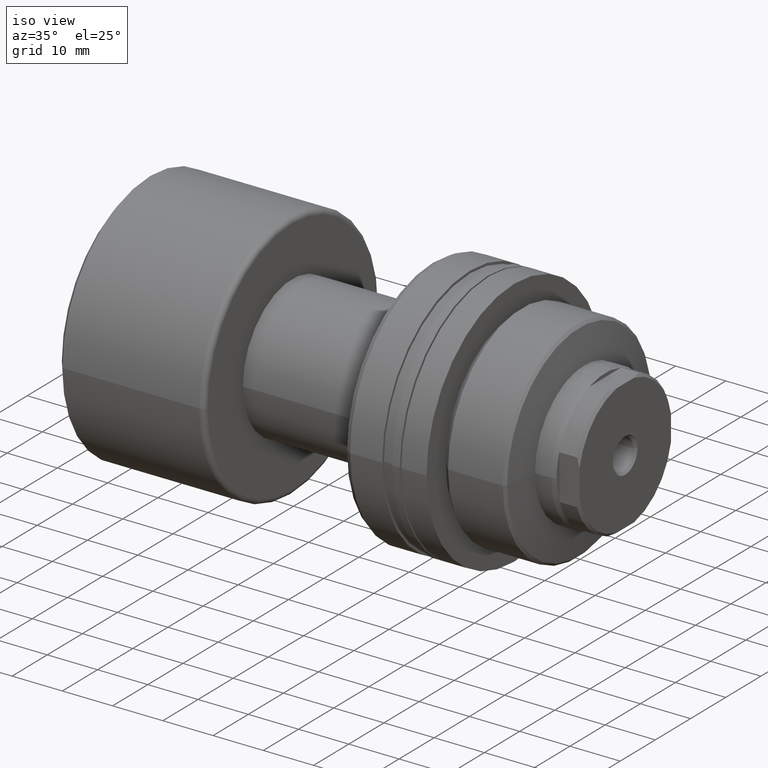
[diagram: clean part render]
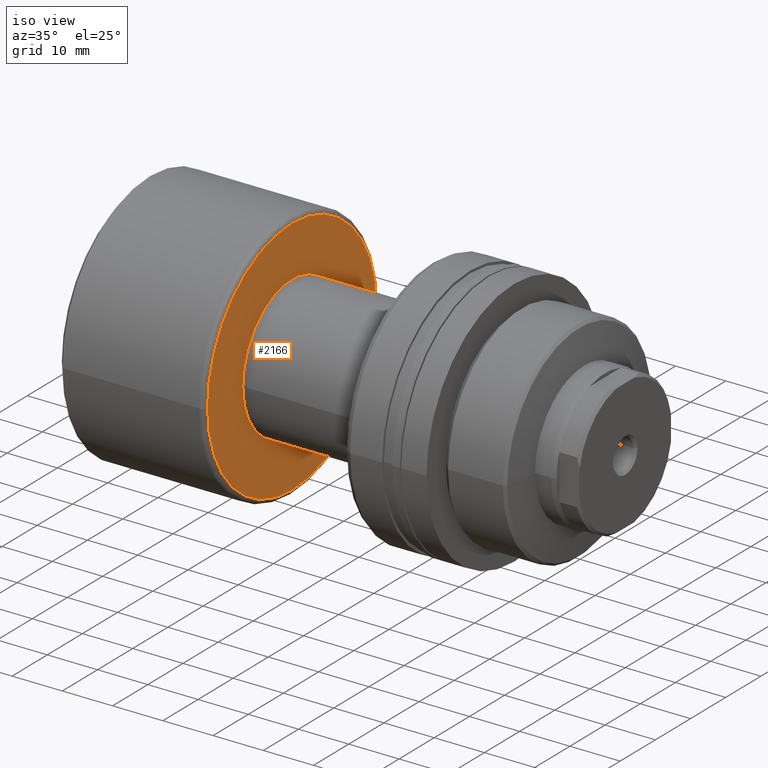
[diagram: same view with one face highlighted and labeled with its STEP entity id]
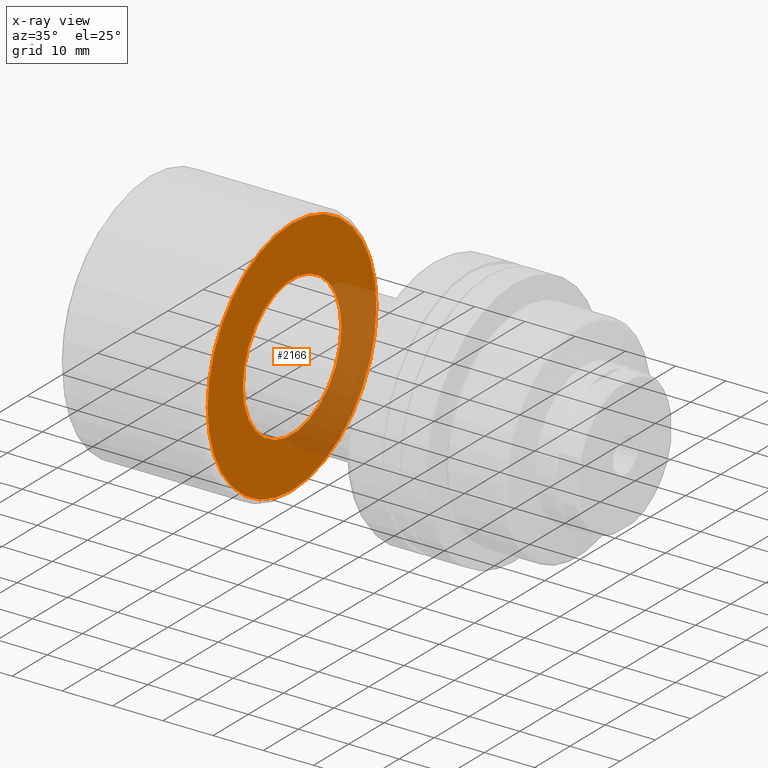
[diagram: x-ray of the same camera — body ghosted, the highlighted face saturated]
A machine part, iso view. The second image highlights one B-rep face of the part: STEP entity #2166.
The next image is the same camera in x-ray: the body ghosted, the highlighted face saturated — about 27% of this face is hidden behind the body in this view.
In plain terms, the highlighted planar face has unit normal (-1, -0, 0).
Its self-contained STEP definition (entity closure, byte-faithful):
#13 = DIRECTION ( 'NONE',  ( -1.000000000000000000, -1.069542322069065801E-17, 0.000000000000000000 ) ) ;
#152 = DIRECTION ( 'NONE',  ( -1.000000000000000000, -1.069542322069065801E-17, -0.000000000000000000 ) ) ;
#196 = FACE_BOUND ( 'NONE', #1075, .T. ) ;
#267 = EDGE_CURVE ( 'NONE', #2226, #1042, #1146, .T. ) ;
#322 = EDGE_LOOP ( 'NONE', ( #408, #1733 ) ) ;
#343 = AXIS2_PLACEMENT_3D ( 'NONE', #1933, #13, #344 ) ;
#344 = DIRECTION ( 'NONE',  ( 1.069542322069065801E-17, -1.000000000000000000, 0.000000000000000000 ) ) ;
#408 = ORIENTED_EDGE ( 'NONE', *, *, #1928, .F. ) ;
#453 = CARTESIAN_POINT ( 'NONE',  ( 29.69999999999999574, 3.176540696545125501E-16, 0.000000000000000000 ) ) ;
#464 = EDGE_CURVE ( 'NONE', #930, #960, #1642, .T. ) ;
#474 = CARTESIAN_POINT ( 'NONE',  ( 29.69999999999999574, 24.00000000000000000, 3.000384657911015469E-15 ) ) ;
#671 = DIRECTION ( 'NONE',  ( 0.000000000000000000, -1.000000000000000000, 0.000000000000000000 ) ) ;
#722 = CARTESIAN_POINT ( 'NONE',  ( 29.69999999999999574, 3.176540696545125501E-16, 0.000000000000000000 ) ) ;
#756 = CARTESIAN_POINT ( 'NONE',  ( 29.69999999999999574, -13.99999999999999822, 0.000000000000000000 ) ) ;
#855 = EDGE_CURVE ( 'NONE', #1042, #2226, #1891, .T. ) ;
#887 = DIRECTION ( 'NONE',  ( -1.000000000000000000, -1.069542322069065801E-17, -0.000000000000000000 ) ) ;
#921 = PLANE ( 'NONE',  #343 ) ;
#930 = VERTEX_POINT ( 'NONE', #474 ) ;
#960 = VERTEX_POINT ( 'NONE', #2065 ) ;
#1042 = VERTEX_POINT ( 'NONE', #756 ) ;
#1075 = EDGE_LOOP ( 'NONE', ( #1251, #1463 ) ) ;
#1113 = AXIS2_PLACEMENT_3D ( 'NONE', #2139, #887, #1630 ) ;
#1117 = AXIS2_PLACEMENT_3D ( 'NONE', #1745, #152, #1399 ) ;
#1146 = CIRCLE ( 'NONE', #1113, 13.99999999999999822 ) ;
#1251 = ORIENTED_EDGE ( 'NONE', *, *, #855, .T. ) ;
#1266 = FACE_OUTER_BOUND ( 'NONE', #322, .T. ) ;
#1399 = DIRECTION ( 'NONE',  ( 0.000000000000000000, -1.000000000000000000, 0.000000000000000000 ) ) ;
#1463 = ORIENTED_EDGE ( 'NONE', *, *, #267, .T. ) ;
#1630 = DIRECTION ( 'NONE',  ( 0.000000000000000000, -1.000000000000000000, 0.000000000000000000 ) ) ;
#1642 = CIRCLE ( 'NONE', #1826, 24.00000000000000000 ) ;
#1648 = CIRCLE ( 'NONE', #1833, 24.00000000000000000 ) ;
#1733 = ORIENTED_EDGE ( 'NONE', *, *, #464, .F. ) ;
#1745 = CARTESIAN_POINT ( 'NONE',  ( 29.69999999999999574, 3.176540696545125501E-16, 0.000000000000000000 ) ) ;
#1826 = AXIS2_PLACEMENT_3D ( 'NONE', #722, #2131, #1991 ) ;
#1833 = AXIS2_PLACEMENT_3D ( 'NONE', #453, #2069, #671 ) ;
#1891 = CIRCLE ( 'NONE', #1117, 13.99999999999999822 ) ;
#1928 = EDGE_CURVE ( 'NONE', #960, #930, #1648, .T. ) ;
#1933 = CARTESIAN_POINT ( 'NONE',  ( 29.69999999999999574, -13.99999999999999822, 0.000000000000000000 ) ) ;
#1991 = DIRECTION ( 'NONE',  ( 0.000000000000000000, -1.000000000000000000, 0.000000000000000000 ) ) ;
#2065 = CARTESIAN_POINT ( 'NONE',  ( 29.69999999999999574, -24.00000000000000000, 0.000000000000000000 ) ) ;
#2069 = DIRECTION ( 'NONE',  ( -1.000000000000000000, -1.069542322069065801E-17, -0.000000000000000000 ) ) ;
#2131 = DIRECTION ( 'NONE',  ( -1.000000000000000000, -1.069542322069065801E-17, -0.000000000000000000 ) ) ;
#2139 = CARTESIAN_POINT ( 'NONE',  ( 29.69999999999999574, 3.176540696545125501E-16, 0.000000000000000000 ) ) ;
#2166 = ADVANCED_FACE ( 'NONE', ( #1266, #196 ), #921, .F. ) ;
#2176 = CARTESIAN_POINT ( 'NONE',  ( 29.69999999999999574, 13.99999999999999822, 1.714505518806300357E-15 ) ) ;
#2226 = VERTEX_POINT ( 'NONE', #2176 ) ;